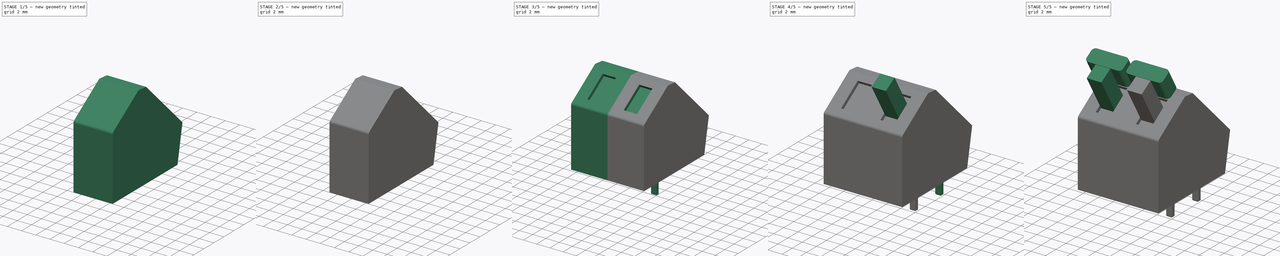
[diagram: build sequence overview — one tinted view per stage of 5, left to right]
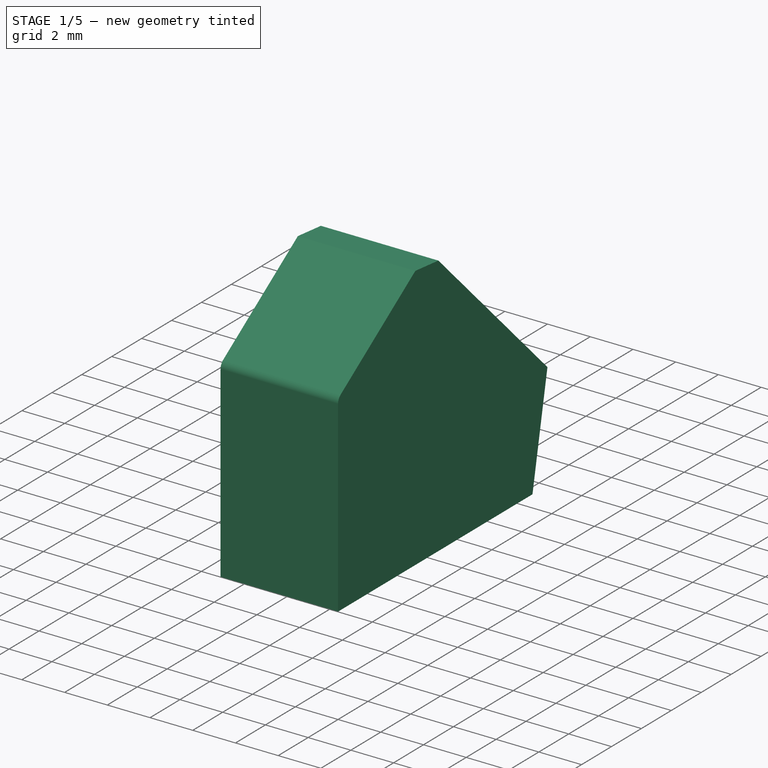
[diagram: stage 1 of 5 — iso view after this stage's code; geometry added in this stage tinted green]
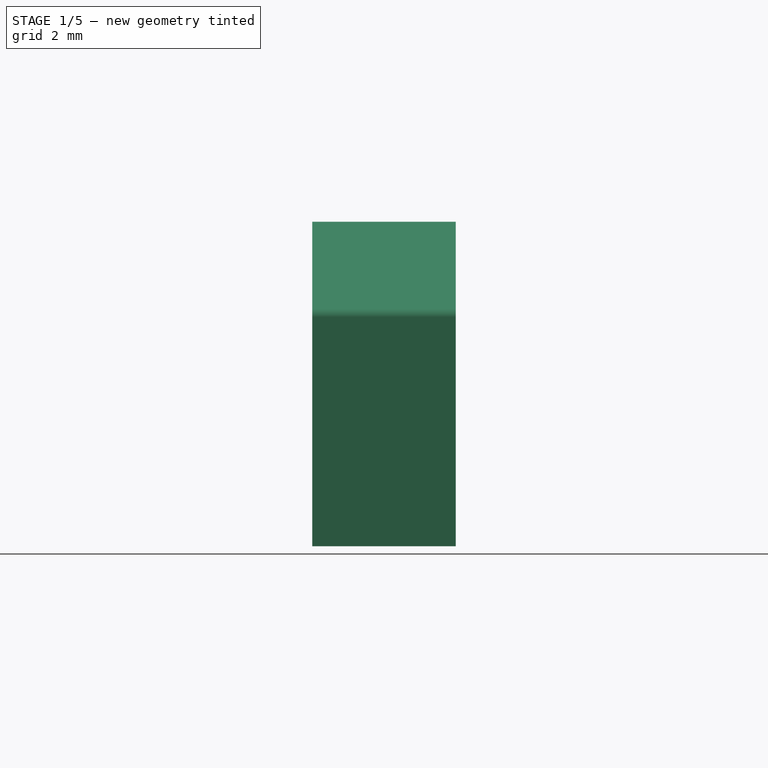
[diagram: stage 1 of 5 — front view after this stage's code; geometry added in this stage tinted green]
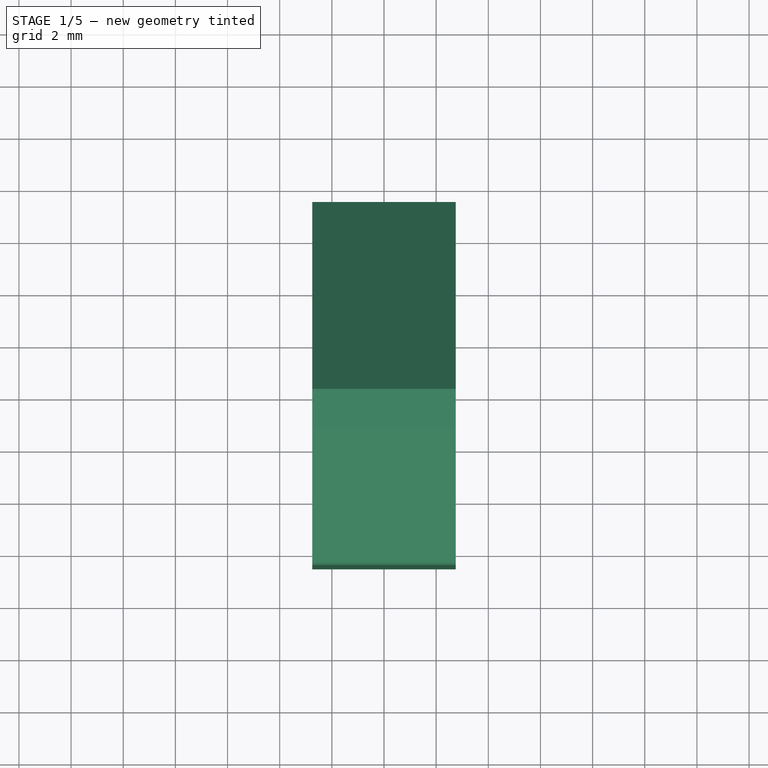
[diagram: stage 1 of 5 — top view after this stage's code; geometry added in this stage tinted green]
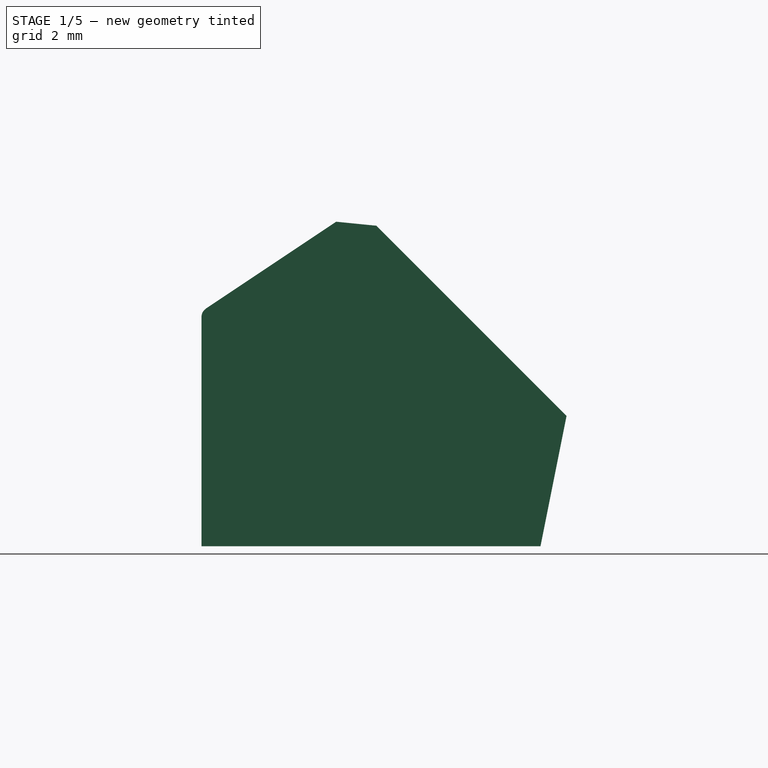
[diagram: stage 1 of 5 — right view after this stage's code; geometry added in this stage tinted green]
FCSTD DOCUMENT  (FreeCAD 0.18R16131 (Git))
Label: con-phoenix_508
License: All rights reserved
LicenseURL: http://en.wikipedia.org/wiki/All_rights_reserved
objects: Sketcher::SketchObject×7, PartDesign::Pad×4, PartDesign::Fillet×3, PartDesign::Body×3, Part::FeaturePython×3, PartDesign::Pocket×2, PartDesign::Draft×2, PartDesign::Chamfer×1, Spreadsheet::Sheet×1
note: 31 computed .brp shape members not serialized (recipe doc carries the construction recipe); baked Part::Feature solids carry a one-line shape summary decoded from their .brp

FEATURE [Sketcher::SketchObject] Sketch
  MapMode = 5
  Placement = pos=(0,0,0) rot=(0.57735,0.57735,0.57735;2.0944rad)
  Support = -> [YZ_Plane]
  sketch-geometry (5):
    g0: LineSegment StartX=-6.5 StartY=0 StartZ=0 EndX=-6.5 EndY=9 EndZ=0
    g1: LineSegment StartX=-6.5 StartY=9 StartZ=0 EndX=-0.5 EndY=13 EndZ=0
    g2: LineSegment StartX=-0.5 StartY=13 StartZ=0 EndX=7.5 EndY=5 EndZ=0
    g3: LineSegment StartX=7.5 StartY=5 StartZ=0 EndX=6.5 EndY=0 EndZ=0
    g4: LineSegment StartX=6.5 StartY=0 StartZ=0 EndX=-6.5 EndY=0 EndZ=0
  constraints (14):
    c: PointOnObject(g0,g-1)
    c: Vertical(g0)
    c: Coincident(g0,g1)
    c: Coincident(g2,g3)
    c: Coincident(g4,g3)
    c: DistanceX(g4,g4) = 13
    c: Coincident(g0,g4)
    c: Symmetric(g0,g3,g-2)
    c: DistanceY(g0,g0) = 9
    c: Coincident(g1,g2)
    c: DistanceX(g0,g1) = 6
    c: DistanceY(g1) = 13
    c: DistanceX(g0,g2) = 14
    c: DistanceY(g2) = 5
FEATURE [PartDesign::Pad] Pad
  Length = 5.5
  Length2 = 100
  Midplane = true
  Placement = pos=(0,0,0) rot=(0.57735,0.57735,0.57735;2.0944rad)
  Profile = -> Sketch
  Type = 0
FEATURE [PartDesign::Chamfer] Chamfer
  Base = -> Pad [Edge5]
  BaseFeature = -> Pad
  Placement = pos=(0,0,0) rot=(0.57735,0.57735,0.57735;2.0944rad)
  Size = 1
FEATURE [PartDesign::Fillet] Fillet
  Base = -> Chamfer [Edge3]
  BaseFeature = -> Chamfer
  Placement = pos=(0,0,0) rot=(0.57735,0.57735,0.57735;2.0944rad)
  Radius = 0.4
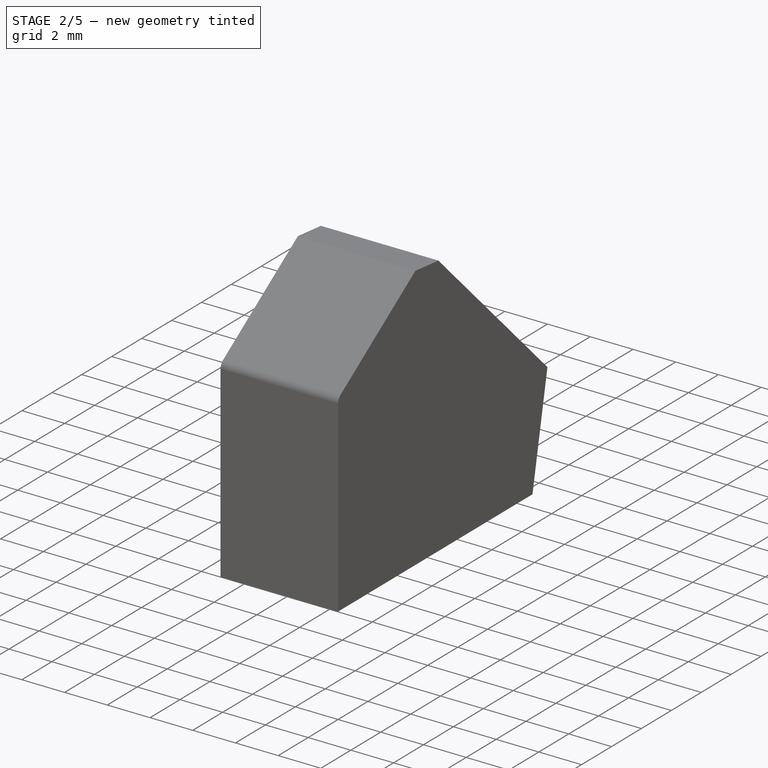
[diagram: stage 2 of 5 — iso view after this stage's code; geometry added in this stage tinted green]
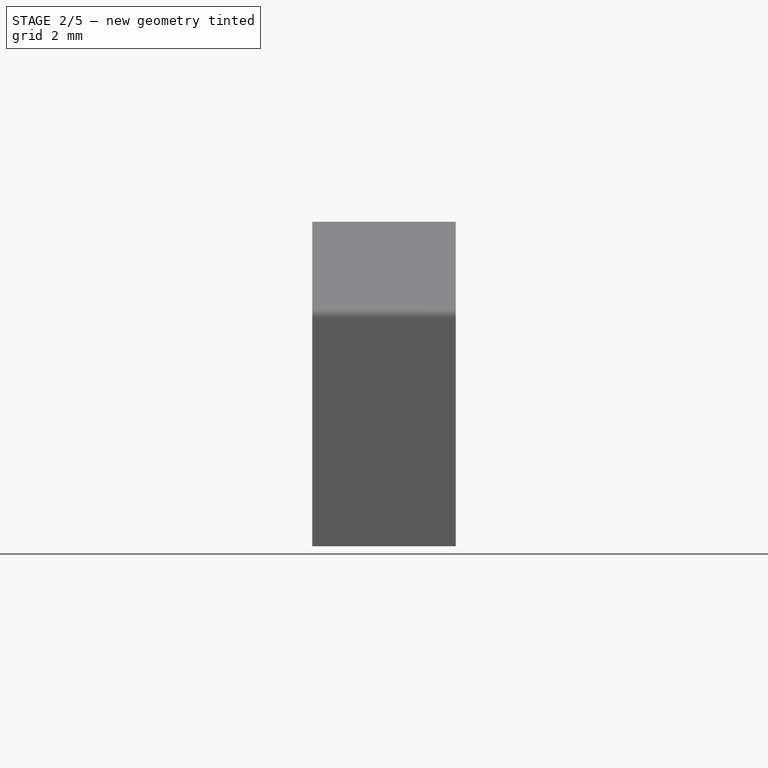
[diagram: stage 2 of 5 — front view after this stage's code; geometry added in this stage tinted green]
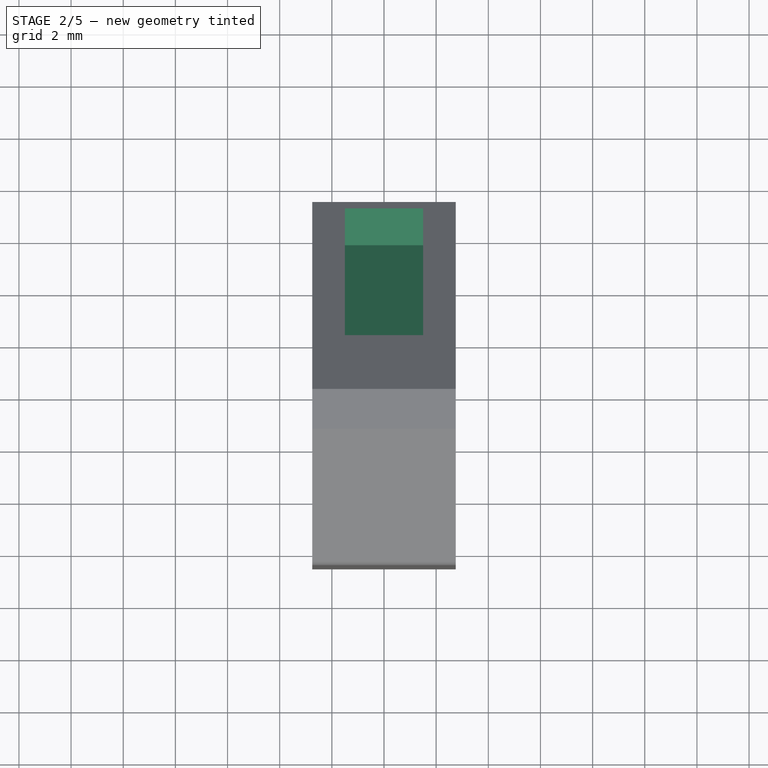
[diagram: stage 2 of 5 — top view after this stage's code; geometry added in this stage tinted green]
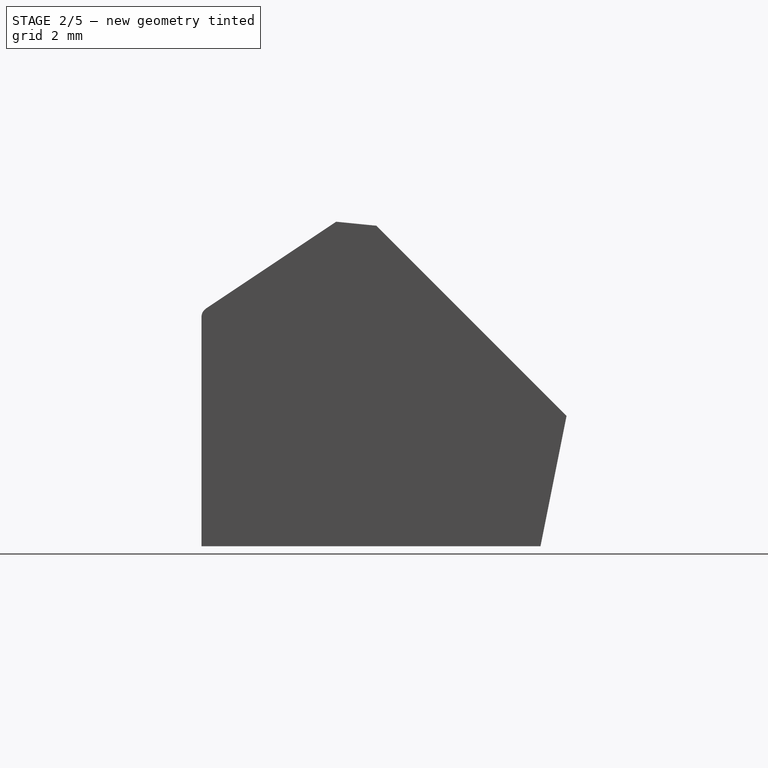
[diagram: stage 2 of 5 — right view after this stage's code; geometry added in this stage tinted green]
FEATURE [Sketcher::SketchObject] Sketch001
  MapMode = 5
  Placement = pos=(1.1e-15,6.25,6.25) rot=(-0.357407,-0.357407,-0.862856;1.71777rad)
  Support = -> [Fillet]
  sketch-geometry (4):
    g0: LineSegment StartX=5.57907 StartY=1.5 StartZ=0 EndX=-1.42093 EndY=1.5 EndZ=0
    g1: LineSegment StartX=-1.42093 StartY=1.5 StartZ=0 EndX=-1.42093 EndY=-1.5 EndZ=0
    g2: LineSegment StartX=-1.42093 StartY=-1.5 StartZ=0 EndX=5.57907 EndY=-1.5 EndZ=0
    g3: LineSegment StartX=5.57907 StartY=-1.5 StartZ=0 EndX=5.57907 EndY=1.5 EndZ=0
  constraints (10):
    c: Coincident(g0,g1)
    c: Coincident(g1,g2)
    c: Coincident(g2,g3)
    c: Coincident(g3,g0)
    c: Horizontal(g0)
    c: Horizontal(g2)
    c: Vertical(g1)
    c: Symmetric(g0,g2,g-1)
    c: DistanceX(g0,g0) = 7
    c: DistanceY(g3,g3) = 3
FEATURE [PartDesign::Pocket] Pocket
  BaseFeature = -> Fillet
  Length = 1
  Length2 = 100
  Placement = pos=(0,0,0) rot=(0.57735,0.57735,0.57735;2.0944rad)
  Profile = -> Sketch001
  Type = 0
FEATURE [PartDesign::Draft] Draft
  Angle = 45
  Base = -> Pocket [Face11]
  BaseFeature = -> Pocket
  NeutralPlane = -> Pocket [Face7]
  Placement = pos=(0,0,0) rot=(0.57735,0.57735,0.57735;2.0944rad)
FEATURE [PartDesign::Draft] Draft001
  Angle = 45
  Base = -> Draft [Face13]
  BaseFeature = -> Draft
  NeutralPlane = -> Draft [Face7]
  Placement = pos=(0,0,0) rot=(0.57735,0.57735,0.57735;2.0944rad)
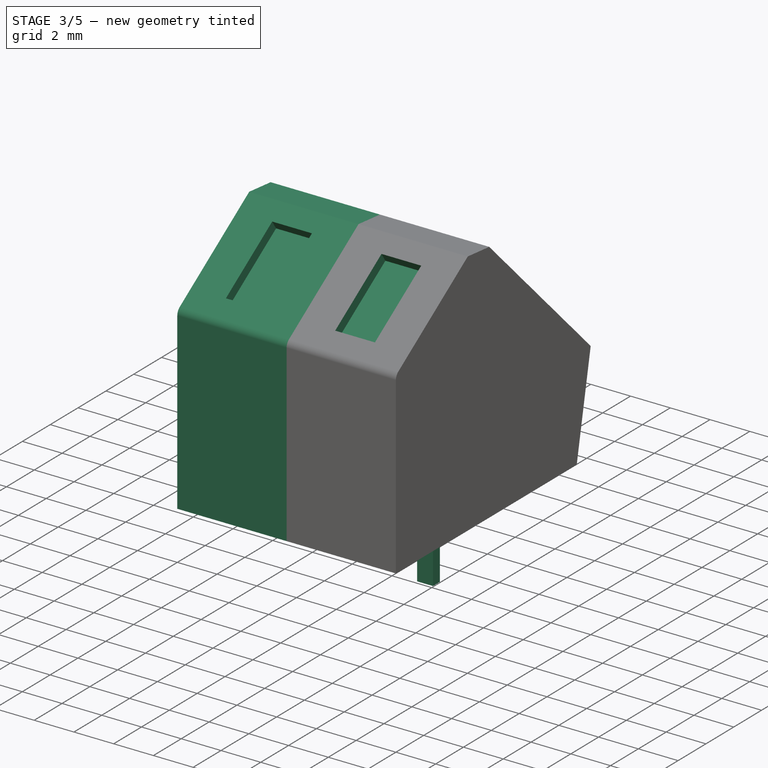
[diagram: stage 3 of 5 — iso view after this stage's code; geometry added in this stage tinted green]
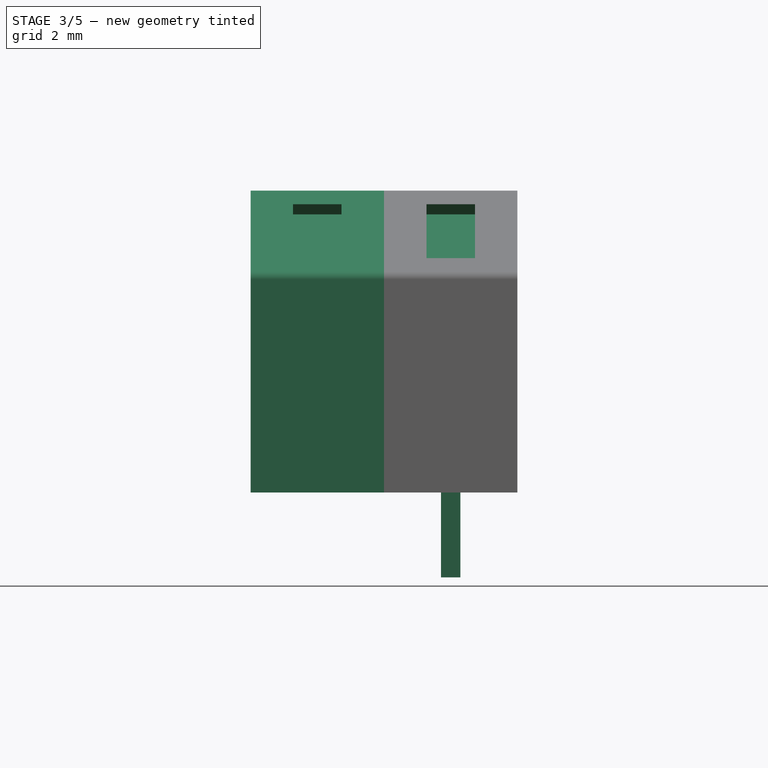
[diagram: stage 3 of 5 — front view after this stage's code; geometry added in this stage tinted green]
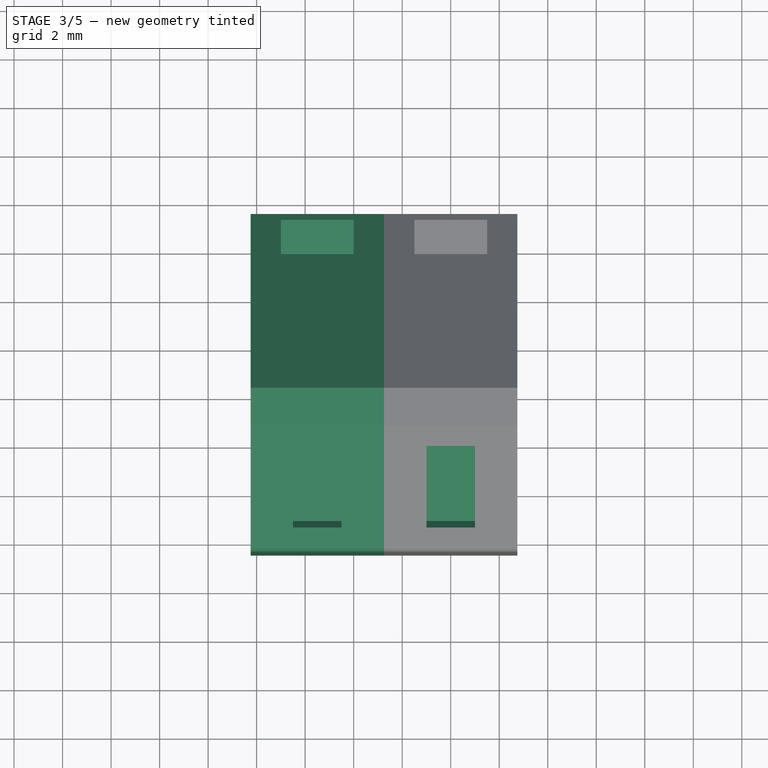
[diagram: stage 3 of 5 — top view after this stage's code; geometry added in this stage tinted green]
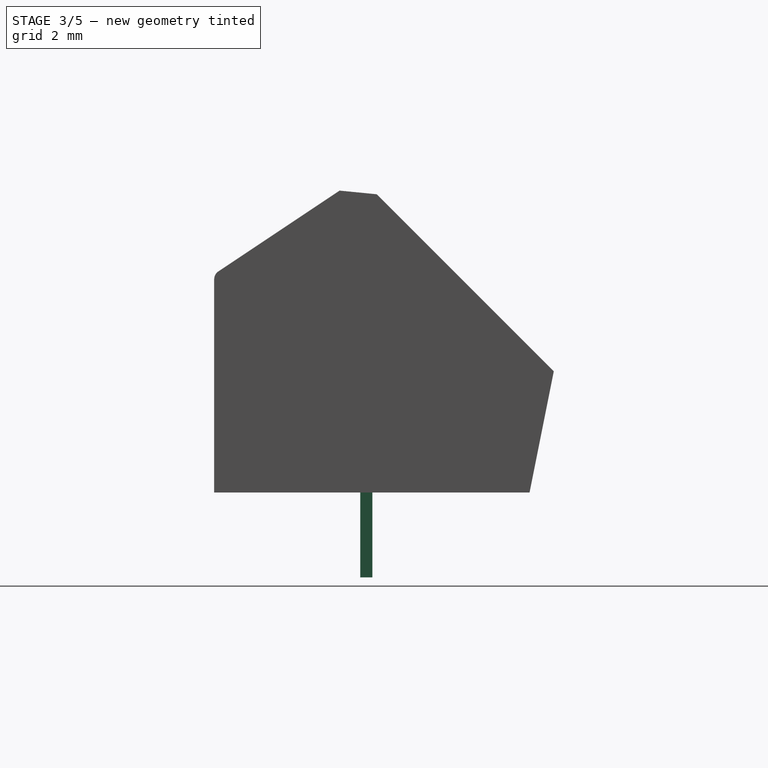
[diagram: stage 3 of 5 — right view after this stage's code; geometry added in this stage tinted green]
FEATURE [Sketcher::SketchObject] Sketch002
  MapMode = 5
  Placement = pos=(-5.3e-15,-6.15385,9.23077) rot=(0.278333,0.278333,-0.919272;1.65487rad)
  Support = -> [Draft001]
  sketch-geometry (4):
    g0: LineSegment StartX=-4.77768 StartY=1 StartZ=0 EndX=-0.777675 EndY=1 EndZ=0
    g1: LineSegment StartX=-0.777675 StartY=1 StartZ=0 EndX=-0.777675 EndY=-1 EndZ=0
    g2: LineSegment StartX=-0.777675 StartY=-1 StartZ=0 EndX=-4.77768 EndY=-1 EndZ=0
    g3: LineSegment StartX=-4.77768 StartY=-1 StartZ=0 EndX=-4.77768 EndY=1 EndZ=0
  constraints (10):
    c: Coincident(g0,g1)
    c: Coincident(g1,g2)
    c: Coincident(g2,g3)
    c: Coincident(g3,g0)
    c: Horizontal(g0)
    c: Horizontal(g2)
    c: Vertical(g3)
    c: Symmetric(g1,g0,g-1)
    c: DistanceY(g3,g3) = 2
    c: DistanceX(g0,g0) = 4
FEATURE [PartDesign::Pocket] Pocket001
  BaseFeature = -> Draft001
  Length = 0.5
  Length2 = 100
  Placement = pos=(0,0,0) rot=(0.57735,0.57735,0.57735;2.0944rad)
  Profile = -> Sketch002
  Type = 0
FEATURE [PartDesign::Body] Body001
  Group = -> [Sketch003,Pad001,Sketch004,Pad002,Fillet001]
  Origin = -> Origin001
  Tip = -> Fillet001
FEATURE [Sketcher::SketchObject] Sketch005
  MapMode = 5
  Placement = pos=(0,0,0) rot=(0.57735,0.57735,0.57735;2.0944rad)
  Support = -> [YZ_Plane002]
  sketch-geometry (5):
    g0: LineSegment StartX=-0.479586 StartY=0 StartZ=0 EndX=0.0204135 EndY=0 EndZ=0
    g1: LineSegment StartX=0.0204135 StartY=0 StartZ=0 EndX=0.0204135 EndY=-3.5 EndZ=0
    g2: LineSegment StartX=0.0204135 StartY=-3.5 StartZ=0 EndX=-0.479586 EndY=-3.5 EndZ=0
    g3: LineSegment StartX=-0.479586 StartY=-3.5 StartZ=0 EndX=-0.479586 EndY=0 EndZ=0
    g4: LineSegment [constr] StartX=-6.47959 StartY=0 StartZ=0 EndX=-0.479586 EndY=0 EndZ=0
  constraints (14):
    c: Coincident(g0,g1)
    c: Coincident(g1,g2)
    c: Coincident(g2,g3)
    c: Coincident(g3,g0)
    c: Horizontal(g0)
    c: Horizontal(g2)
    c: Vertical(g1)
    c: Vertical(g3)
    c: DistanceX(g2,g2) = 0.5
    c: DistanceY(g1,g1) = 3.5
    c: PointOnObject(g0,g-1)
    c: PointOnObject(g4,g-1)
    c: DistanceX(g4,g4) = 6
    c: Coincident(g0,g4)
FEATURE [PartDesign::Pad] Pad003
  Length = 0.8
  Length2 = 100
  Midplane = true
  Placement = pos=(0,0,0) rot=(0.57735,0.57735,0.57735;2.0944rad)
  Profile = -> Sketch005
  Reversed = true
  Type = 0
FEATURE [Part::FeaturePython] Array  # Draft array (typed FeaturePython)
  Angle = 360
  ArrayType = 0
  Axis = (0,0,1)
  Base = -> Body
  Center = (0,0,0)
  Fuse = false
  IntervalAxis = (0,0,0)
  IntervalX = (-5.5,0,0)
  IntervalY = (0,1,0)
  IntervalZ = (0,0,1)
  NumberPolar = 1
  NumberX = 2
  NumberY = 1
  NumberZ = 1
  expr: NumberX = Spreadsheet.B1
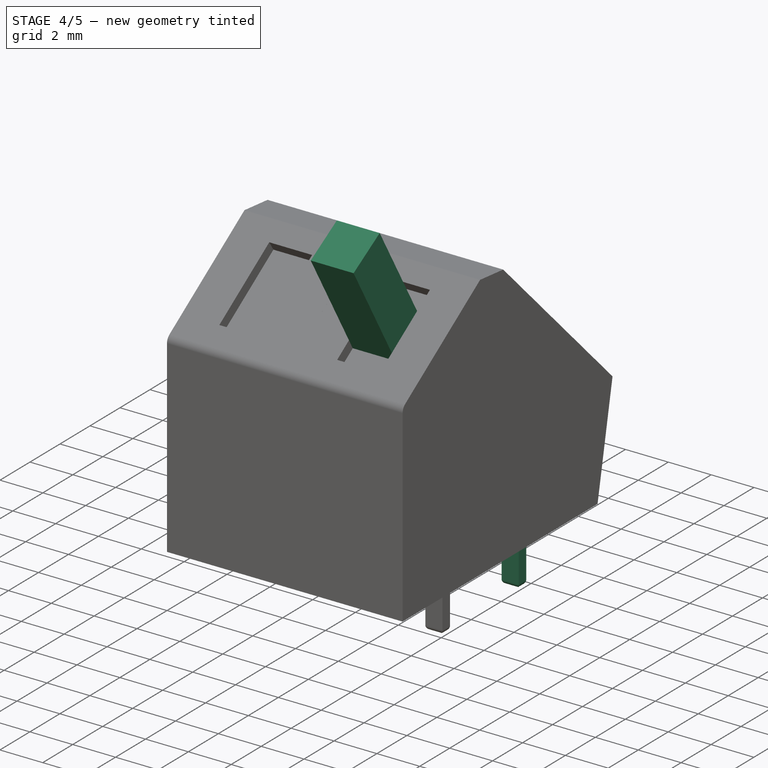
[diagram: stage 4 of 5 — iso view after this stage's code; geometry added in this stage tinted green]
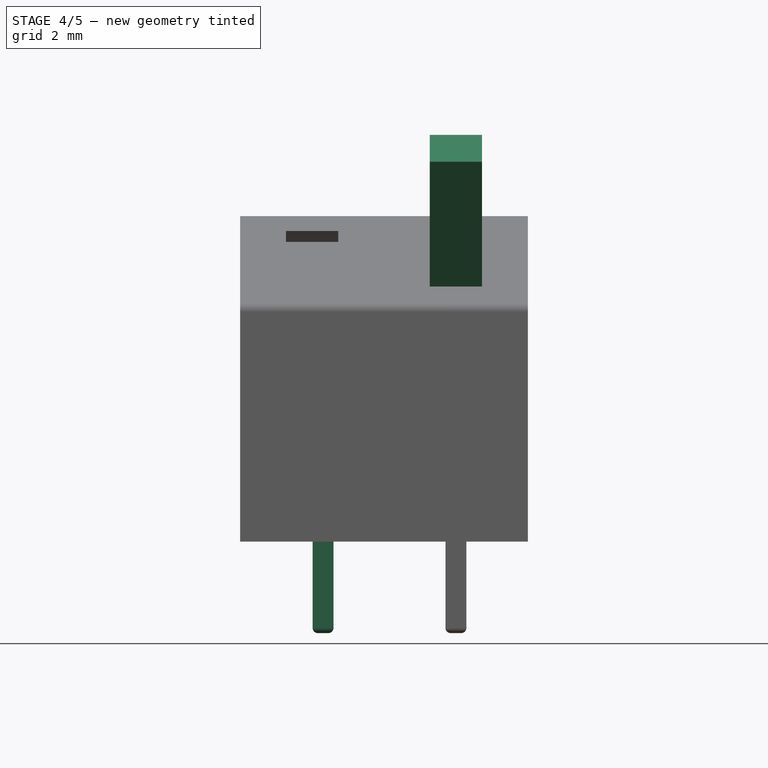
[diagram: stage 4 of 5 — front view after this stage's code; geometry added in this stage tinted green]
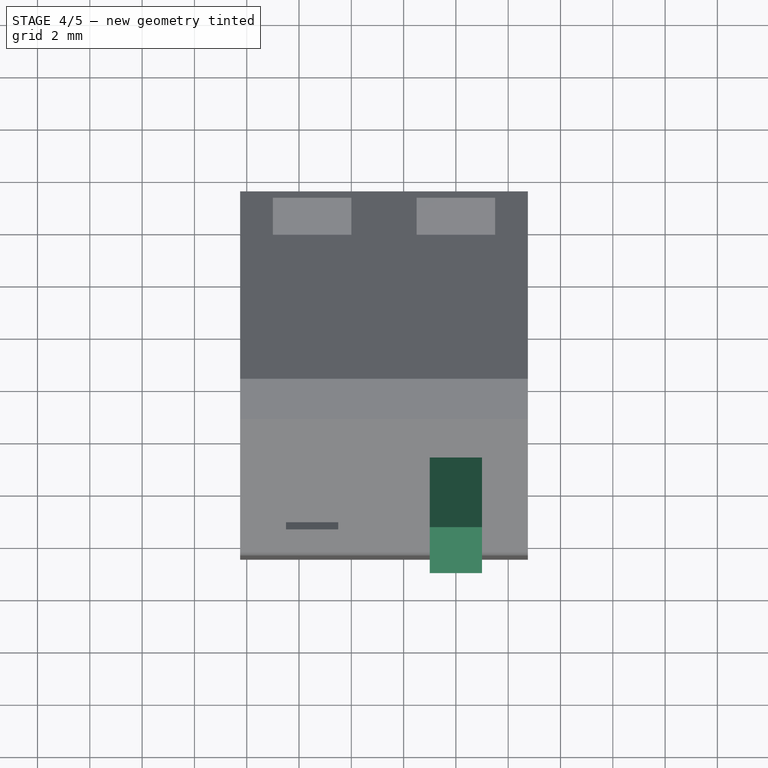
[diagram: stage 4 of 5 — top view after this stage's code; geometry added in this stage tinted green]
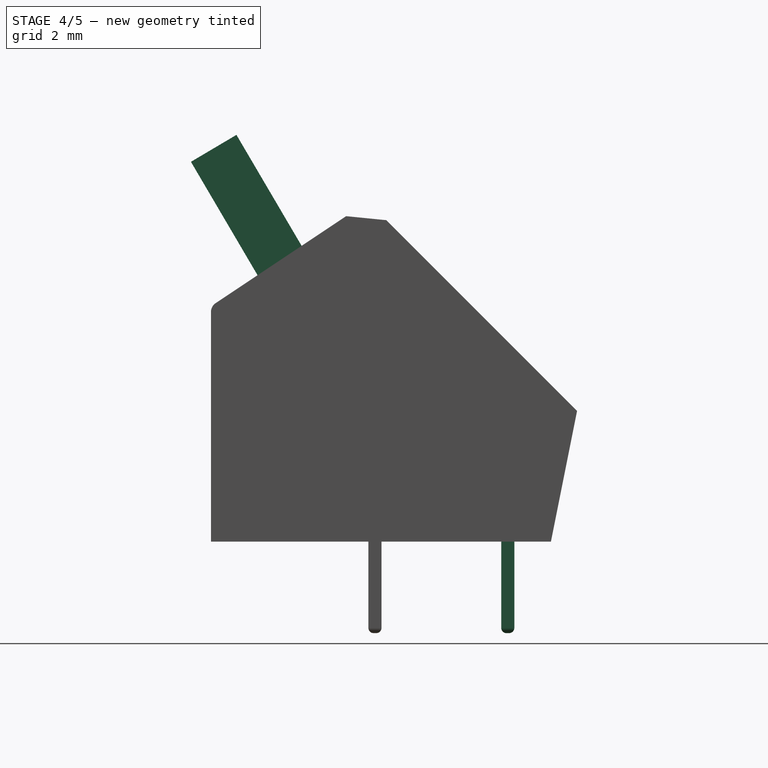
[diagram: stage 4 of 5 — right view after this stage's code; geometry added in this stage tinted green]
FEATURE [Sketcher::SketchObject] Sketch003
  MapMode = 5
  Placement = pos=(0,0,0) rot=(0.57735,0.57735,0.57735;2.0944rad)
  Support = -> [YZ_Plane001]
  sketch-geometry (4):
    g0: LineSegment StartX=-7.26691 StartY=14.525 StartZ=0 EndX=-5.52645 EndY=15.5546 EndZ=0
    g1: LineSegment StartX=-5.52645 StartY=15.5546 StartZ=0 EndX=-2.59487 EndY=10.5641 EndZ=0
    g2: LineSegment StartX=-2.59487 StartY=10.5641 StartZ=0 EndX=-4.34002 EndY=9.54253 EndZ=0
    g3: LineSegment StartX=-4.34002 StartY=9.54253 StartZ=0 EndX=-7.26691 EndY=14.525 EndZ=0
  constraints (5):
    c: Coincident(g0,g1)
    c: Coincident(g1,g2)
    c: Coincident(g3,g2)
    c: Coincident(g3,g0)
    c: Equal(g0,g2)
FEATURE [Sketcher::SketchObject] CopySketch003
  Placement = pos=(0,0,0) rot=(0.57735,0.57735,0.57735;2.0944rad)
  sketch-geometry (4):
    g0: LineSegment StartX=-7.26691 StartY=14.525 StartZ=0 EndX=-5.52645 EndY=15.5546 EndZ=0
    g1: LineSegment StartX=-5.52645 StartY=15.5546 StartZ=0 EndX=-2.59487 EndY=10.5641 EndZ=0
    g2: LineSegment StartX=-2.59487 StartY=10.5641 StartZ=0 EndX=-4.34002 EndY=9.54253 EndZ=0
    g3: LineSegment StartX=-4.34002 StartY=9.54253 StartZ=0 EndX=-7.26691 EndY=14.525 EndZ=0
  constraints (5):
    c: Coincident(g0,g1)
    c: Coincident(g1,g2)
    c: Coincident(g3,g2)
    c: Coincident(g3,g0)
    c: Equal(g0,g2)
FEATURE [PartDesign::Body] Body
  Group = -> [Sketch,Pad,Chamfer,Fillet,Sketch001,Pocket,Draft,Draft001,Sketch002,Pocket001,CopySketch003]
  Origin = -> Origin
  Tip = -> Pocket001
FEATURE [PartDesign::Pad] Pad001
  Length = 2
  Length2 = 100
  Midplane = true
  Placement = pos=(0,0,0) rot=(0.57735,0.57735,0.57735;2.0944rad)
  Profile = -> Sketch003
  Type = 0
FEATURE [PartDesign::Fillet] Fillet002
  Base = -> Pad003 [Face3]
  BaseFeature = -> Pad003
  Placement = pos=(0,0,0) rot=(0.57735,0.57735,0.57735;2.0944rad)
  Radius = 0.2
FEATURE [Part::FeaturePython] Array003  # Draft array (typed FeaturePython)
  Angle = 360
  ArrayType = 0
  Axis = (0,0,1)
  Base = -> Fillet002
  Center = (0,0,0)
  Fuse = false
  IntervalAxis = (0,0,0)
  IntervalX = (-5.08,0,0)
  IntervalY = (0,5.08,0)
  IntervalZ = (0,0,1)
  NumberPolar = 1
  NumberX = 2
  NumberY = 2
  NumberZ = 1
  expr: NumberX = Spreadsheet.B1
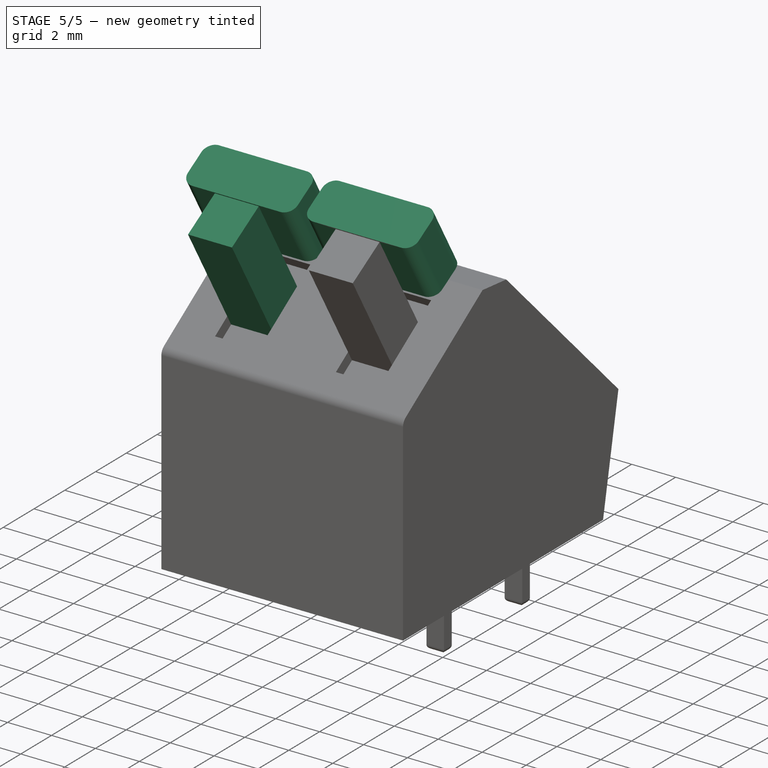
[diagram: stage 5 of 5 — iso view after this stage's code; geometry added in this stage tinted green]
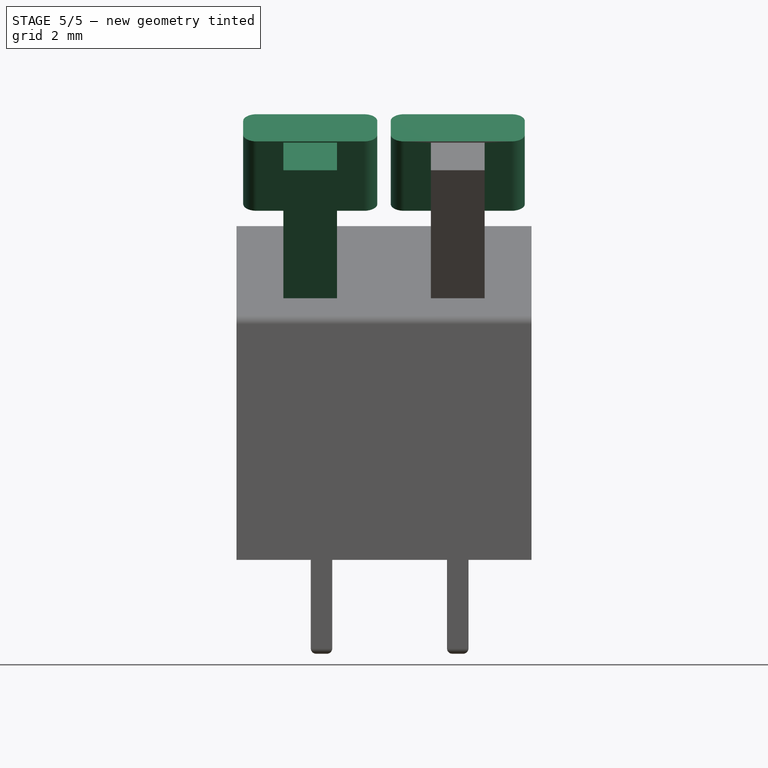
[diagram: stage 5 of 5 — front view after this stage's code; geometry added in this stage tinted green]
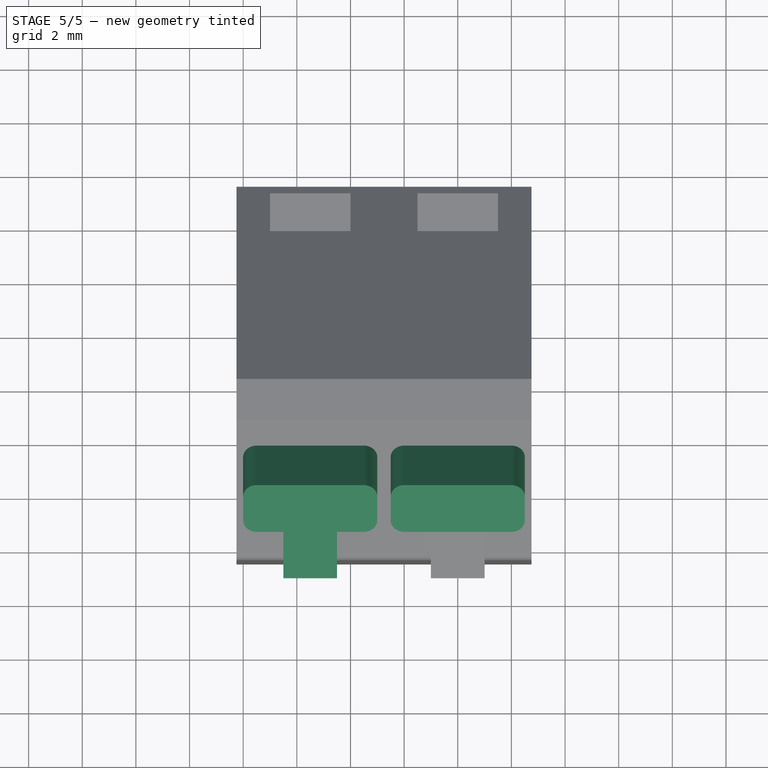
[diagram: stage 5 of 5 — top view after this stage's code; geometry added in this stage tinted green]
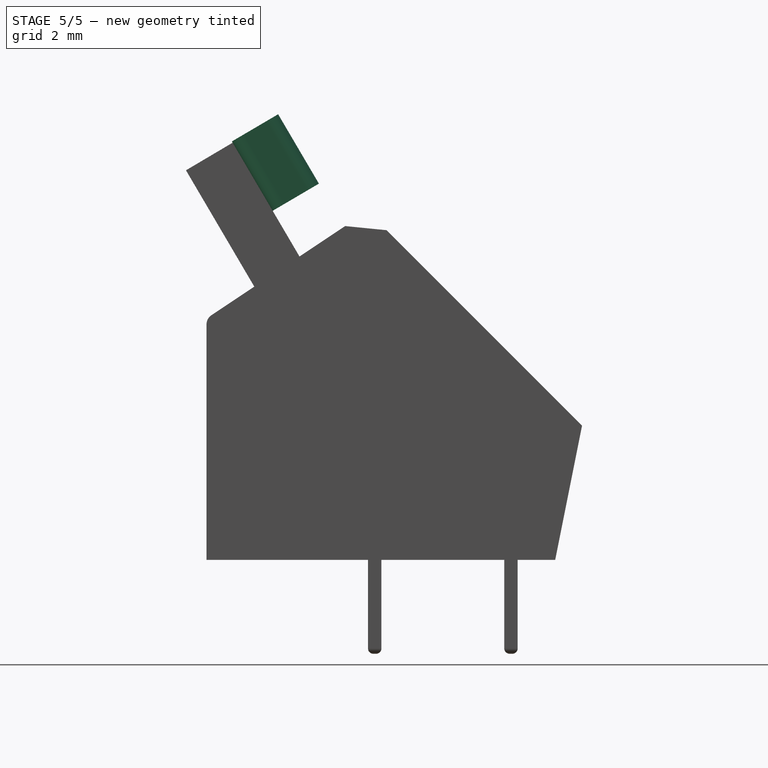
[diagram: stage 5 of 5 — right view after this stage's code; geometry added in this stage tinted green]
FEATURE [Sketcher::SketchObject] Sketch004
  MapMode = 5
  Placement = pos=(7e-16,2.68451,1.57699) rot=(-0.444872,-0.444872,-0.777288;1.82012rad)
  Support = -> [Pad001]
  sketch-geometry (4):
    g0: LineSegment StartX=13.2657 StartY=2.5 StartZ=0 EndX=16.2657 EndY=2.5 EndZ=0
    g1: LineSegment StartX=16.2657 StartY=2.5 StartZ=0 EndX=16.2657 EndY=-2.5 EndZ=0
    g2: LineSegment StartX=16.2657 StartY=-2.5 StartZ=0 EndX=13.2657 EndY=-2.5 EndZ=0
    g3: LineSegment StartX=13.2657 StartY=-2.5 StartZ=0 EndX=13.2657 EndY=2.5 EndZ=0
  constraints (10):
    c: Coincident(g0,g1)
    c: Coincident(g1,g2)
    c: Coincident(g2,g3)
    c: Coincident(g3,g0)
    c: Horizontal(g0)
    c: Horizontal(g2)
    c: Vertical(g3)
    c: Symmetric(g0,g1,g-1)
    c: DistanceY(g1,g1) = 5
    c: DistanceX(g0,g0) = 3
FEATURE [PartDesign::Pad] Pad002
  BaseFeature = -> Pad001
  Length = 2
  Length2 = 100
  Placement = pos=(0,0,0) rot=(0.57735,0.57735,0.57735;2.0944rad)
  Profile = -> Sketch004
  Type = 0
FEATURE [PartDesign::Fillet] Fillet001
  Base = -> Pad002 [Edge25,Edge28,Edge12,Edge14]
  BaseFeature = -> Pad002
  Placement = pos=(0,0,0) rot=(0.57735,0.57735,0.57735;2.0944rad)
  Radius = 0.5
FEATURE [PartDesign::Body] Body002
  Group = -> [Sketch005,Pad003,Fillet002]
  Origin = -> Origin002
  Tip = -> Fillet002
FEATURE [Spreadsheet::Sheet] Spreadsheet
  cells = A1=rows; B1=2
FEATURE [Part::FeaturePython] Array002  # Draft array (typed FeaturePython)
  Angle = 360
  ArrayType = 0
  Axis = (0,0,1)
  Base = -> Body001
  Center = (0,0,0)
  Fuse = false
  IntervalAxis = (0,0,0)
  IntervalX = (-5.5,0,0)
  IntervalY = (0,1,0)
  IntervalZ = (0,0,1)
  NumberPolar = 1
  NumberX = 2
  NumberY = 1
  NumberZ = 1
  expr: NumberX = Spreadsheet.B1
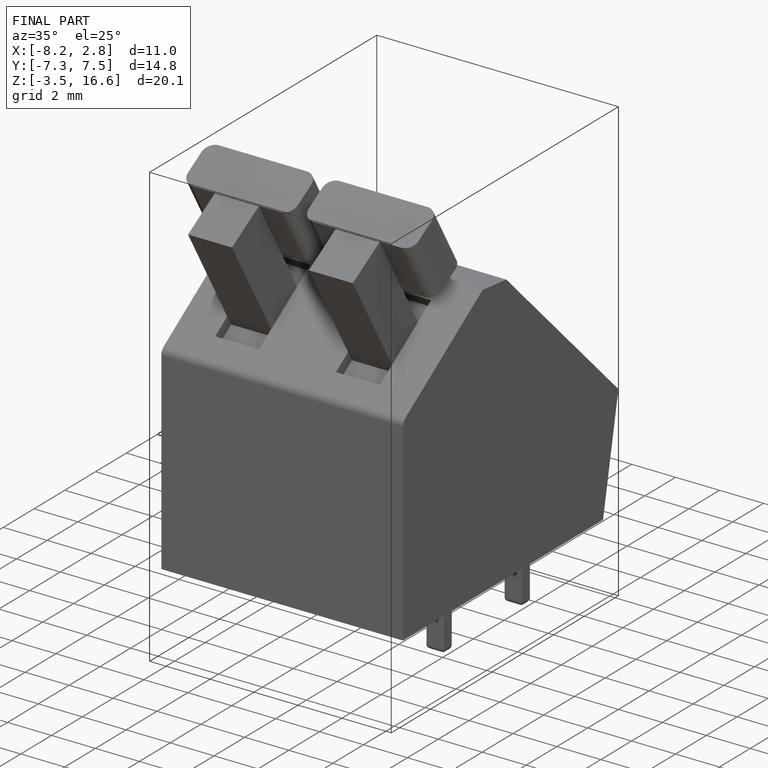
[diagram: finished part — iso view with bounding-box wireframe]
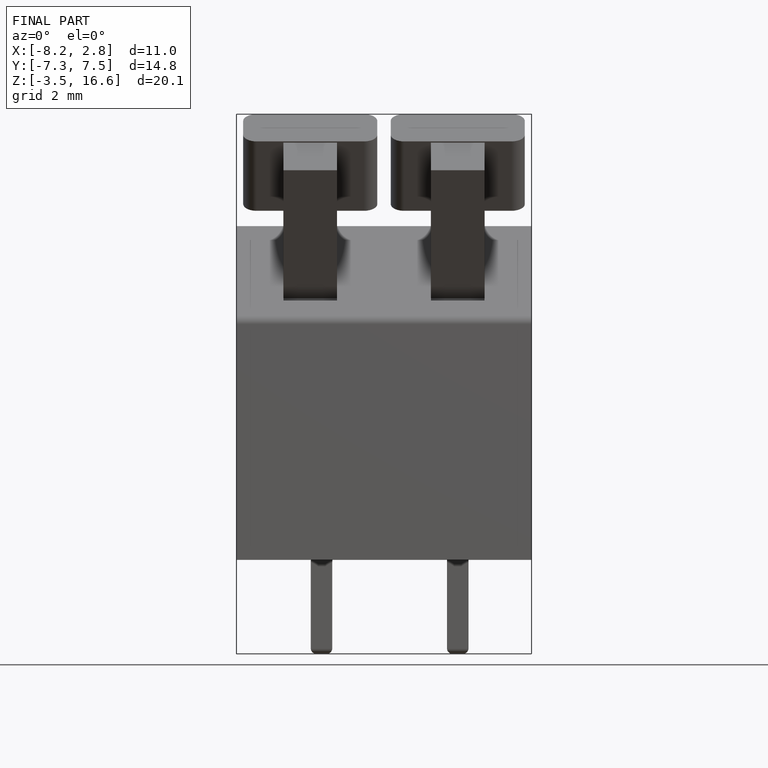
[diagram: finished part — front view with bounding-box wireframe]
